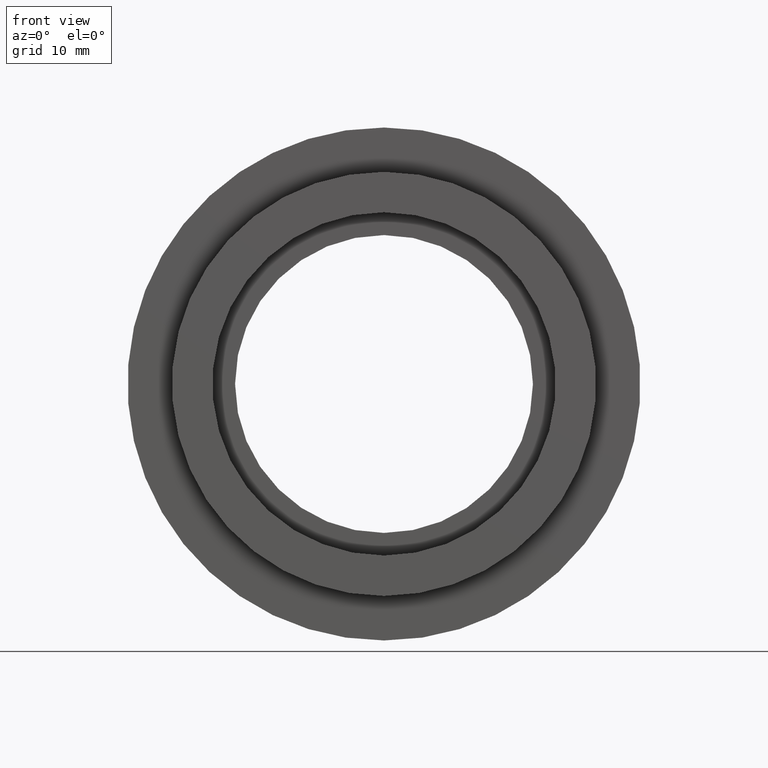
[diagram: clean part render]
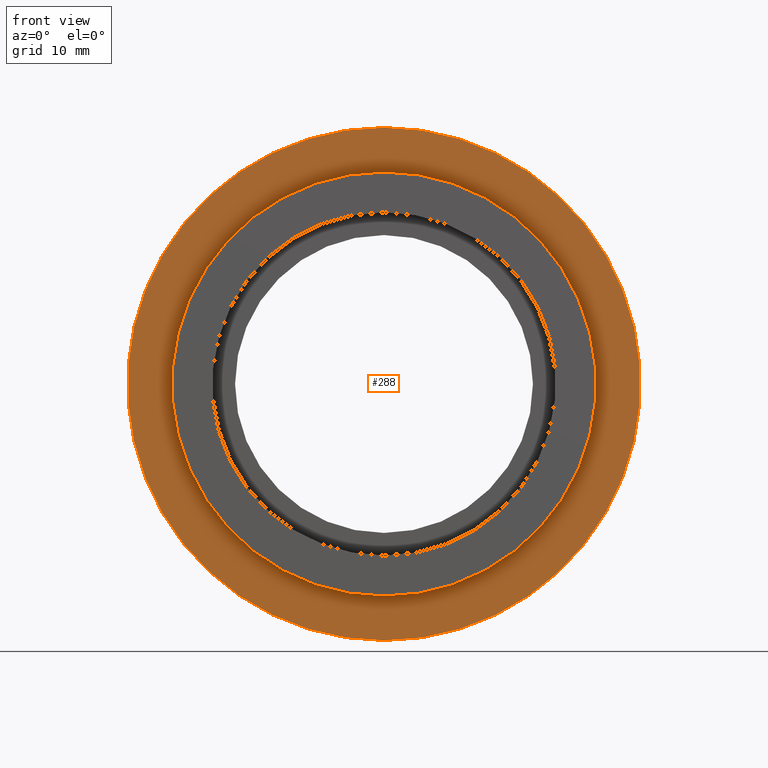
[diagram: same view with one face highlighted and labeled with its STEP entity id]
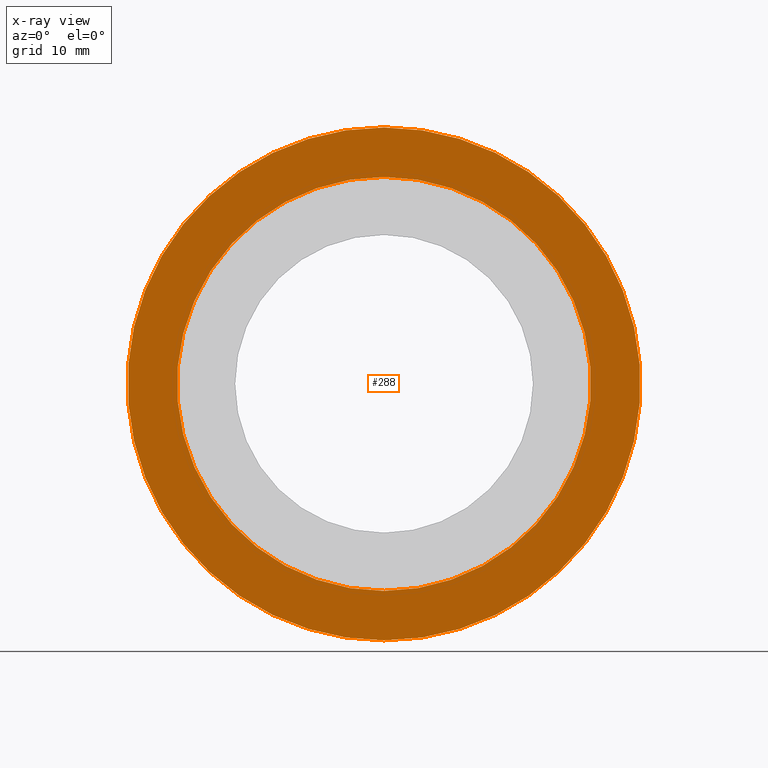
[diagram: x-ray of the same camera — body ghosted, the highlighted face saturated]
A machine part, front view. The second image highlights one B-rep face of the part: STEP entity #288.
The next image is the same camera in x-ray: the body ghosted, the highlighted face saturated — about 0% of this face is hidden behind the body in this view.
In plain terms, the highlighted planar face has unit normal (-0, 1, 0).
Its self-contained STEP definition (entity closure, byte-faithful):
#7 = EDGE_CURVE ( 'NONE', #89, #113, #351, .T. ) ;
#89 = VERTEX_POINT ( 'NONE', #246 ) ;
#113 = VERTEX_POINT ( 'NONE', #325 ) ;
#114 = EDGE_CURVE ( 'NONE', #531, #504, #187, .T. ) ;
#128 = ORIENTED_EDGE ( 'NONE', *, *, #202, .T. ) ;
#173 = DIRECTION ( 'NONE',  ( -0.0000000000000000000, 1.000000000000000000, -0.0000000000000000000 ) ) ;
#186 = DIRECTION ( 'NONE',  ( 0.0000000000000000000, 0.0000000000000000000, 1.000000000000000000 ) ) ;
#187 = CIRCLE ( 'NONE', #237, 20.50000000000000000 ) ;
#188 = CARTESIAN_POINT ( 'NONE',  ( 0.0000000000000000000, 4.999999999999999100, 0.0000000000000000000 ) ) ;
#202 = EDGE_CURVE ( 'NONE', #504, #531, #468, .T. ) ;
#211 = AXIS2_PLACEMENT_3D ( 'NONE', #330, #447, #242 ) ;
#237 = AXIS2_PLACEMENT_3D ( 'NONE', #188, #491, #186 ) ;
#242 = DIRECTION ( 'NONE',  ( 0.0000000000000000000, 0.0000000000000000000, 1.000000000000000000 ) ) ;
#246 = CARTESIAN_POINT ( 'NONE',  ( 3.110602869834276900E-015, 5.000000000000000900, -25.39999999999999900 ) ) ;
#260 = EDGE_LOOP ( 'NONE', ( #278, #482 ) ) ;
#278 = ORIENTED_EDGE ( 'NONE', *, *, #327, .F. ) ;
#281 = CARTESIAN_POINT ( 'NONE',  ( 2.510525938252074500E-015, 4.999999999999999100, -20.50000000000000000 ) ) ;
#288 = ADVANCED_FACE ( 'NONE', ( #392, #610 ), #592, .F. ) ;
#296 = AXIS2_PLACEMENT_3D ( 'NONE', #624, #173, #566 ) ;
#311 = EDGE_LOOP ( 'NONE', ( #128, #329 ) ) ;
#319 = DIRECTION ( 'NONE',  ( 0.0000000000000000000, 0.0000000000000000000, 1.000000000000000000 ) ) ;
#325 = CARTESIAN_POINT ( 'NONE',  ( 0.0000000000000000000, 5.000000000000000900, 25.39999999999999900 ) ) ;
#327 = EDGE_CURVE ( 'NONE', #113, #89, #456, .T. ) ;
#329 = ORIENTED_EDGE ( 'NONE', *, *, #114, .T. ) ;
#330 = CARTESIAN_POINT ( 'NONE',  ( 0.0000000000000000000, 5.000000000000000900, 0.0000000000000000000 ) ) ;
#351 = CIRCLE ( 'NONE', #211, 25.39999999999999900 ) ;
#353 = CARTESIAN_POINT ( 'NONE',  ( 25.39999999999999900, 5.000000000000000000, 0.0000000000000000000 ) ) ;
#392 = FACE_OUTER_BOUND ( 'NONE', #260, .T. ) ;
#409 = DIRECTION ( 'NONE',  ( -0.0000000000000000000, 1.000000000000000000, 0.0000000000000000000 ) ) ;
#414 = AXIS2_PLACEMENT_3D ( 'NONE', #530, #573, #319 ) ;
#440 = AXIS2_PLACEMENT_3D ( 'NONE', #353, #409, #590 ) ;
#447 = DIRECTION ( 'NONE',  ( -0.0000000000000000000, 1.000000000000000000, -0.0000000000000000000 ) ) ;
#456 = CIRCLE ( 'NONE', #414, 25.39999999999999900 ) ;
#468 = CIRCLE ( 'NONE', #296, 20.50000000000000000 ) ;
#482 = ORIENTED_EDGE ( 'NONE', *, *, #7, .F. ) ;
#491 = DIRECTION ( 'NONE',  ( -0.0000000000000000000, 1.000000000000000000, -0.0000000000000000000 ) ) ;
#504 = VERTEX_POINT ( 'NONE', #510 ) ;
#510 = CARTESIAN_POINT ( 'NONE',  ( 0.0000000000000000000, 4.999999999999999100, 20.50000000000000000 ) ) ;
#530 = CARTESIAN_POINT ( 'NONE',  ( 0.0000000000000000000, 5.000000000000000900, 0.0000000000000000000 ) ) ;
#531 = VERTEX_POINT ( 'NONE', #281 ) ;
#566 = DIRECTION ( 'NONE',  ( 0.0000000000000000000, 0.0000000000000000000, 1.000000000000000000 ) ) ;
#573 = DIRECTION ( 'NONE',  ( -0.0000000000000000000, 1.000000000000000000, -0.0000000000000000000 ) ) ;
#590 = DIRECTION ( 'NONE',  ( 0.0000000000000000000, 0.0000000000000000000, 1.000000000000000000 ) ) ;
#592 = PLANE ( 'NONE',  #440 ) ;
#610 = FACE_BOUND ( 'NONE', #311, .T. ) ;
#624 = CARTESIAN_POINT ( 'NONE',  ( 0.0000000000000000000, 4.999999999999999100, 0.0000000000000000000 ) ) ;